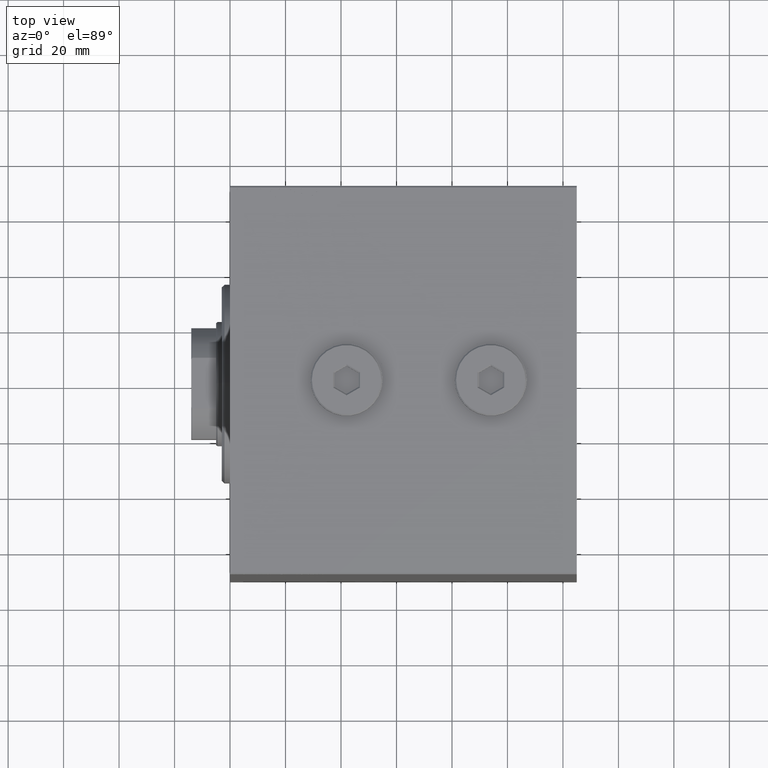
[diagram: clean part render]
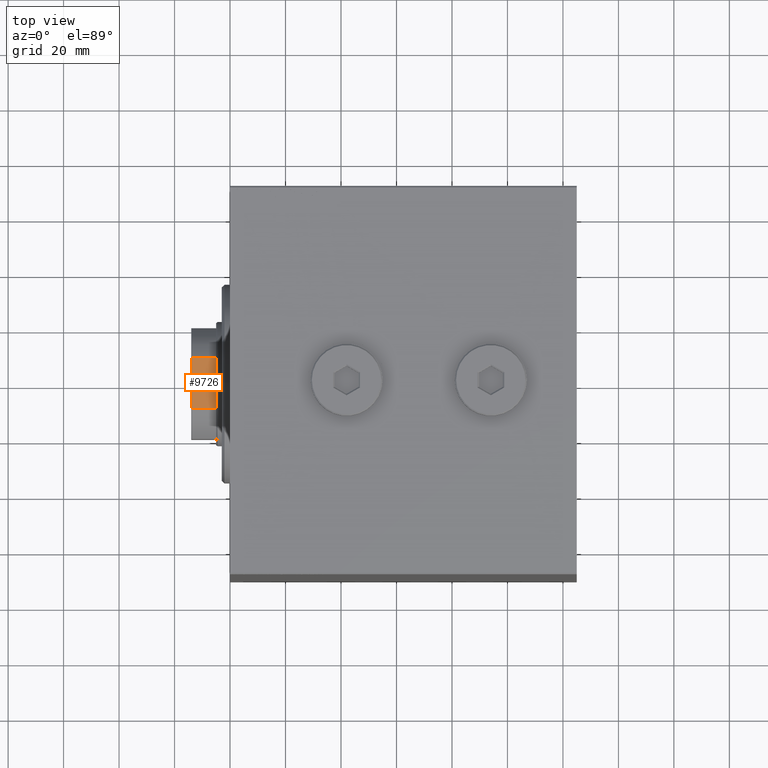
[diagram: same view with one face highlighted and labeled with its STEP entity id]
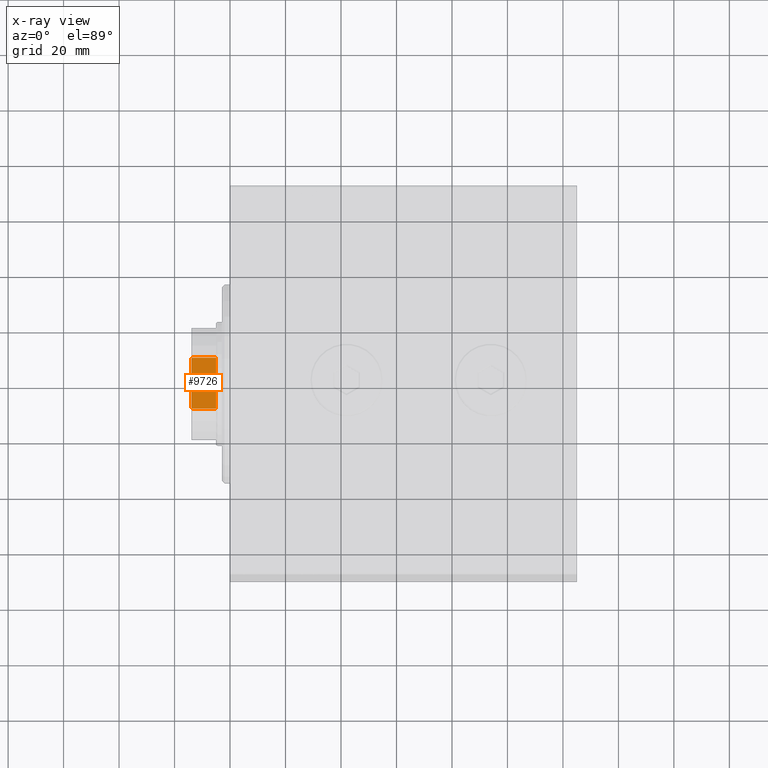
[diagram: x-ray of the same camera — body ghosted, the highlighted face saturated]
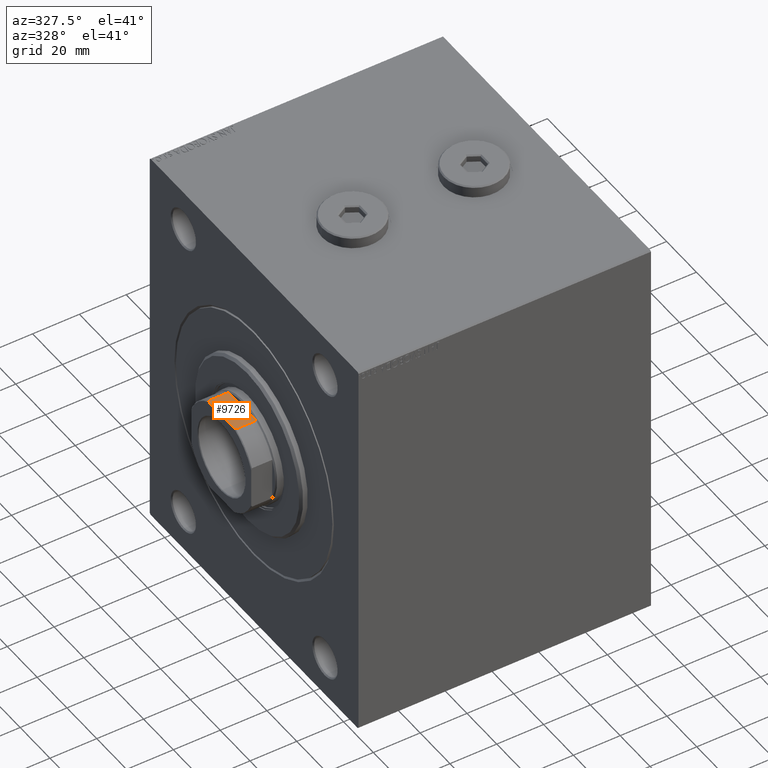
[diagram: same view with one face highlighted and labeled with its STEP entity id]
A machine part, top view. The second image highlights one B-rep face of the part: STEP entity #9726.
The next image is the same camera in x-ray: the body ghosted, the highlighted face saturated — about 0% of this face is hidden behind the body in this view.
A second angle (auxiliary view) of the same face is appended — the face is thin or edge-on in the first view.
In plain terms, the highlighted planar face has unit normal (-0, -0, -1).
Its self-contained STEP definition (entity closure, byte-faithful):
#349 = PLANE ( 'NONE',  #3297 ) ;
#1682 = CARTESIAN_POINT ( 'NONE',  ( 19.99999999999999289, 19.99999999999999289, 55.99999999999999289 ) ) ;
#1913 = DIRECTION ( 'NONE',  ( -2.602085213965210149E-16, 1.000000000000000000, -0.000000000000000000 ) ) ;
#1996 = VECTOR ( 'NONE', #28626, 1000.000000000000000 ) ;
#2133 = ORIENTED_EDGE ( 'NONE', *, *, #18015, .T. ) ;
#3297 = AXIS2_PLACEMENT_3D ( 'NONE', #24969, #18063, #39687 ) ;
#3384 = VERTEX_POINT ( 'NONE', #18315 ) ;
#3790 = CARTESIAN_POINT ( 'NONE',  ( 19.99999999999999645, -8.669375665356248817, 64.90309455053733245 ) ) ;
#4465 = CARTESIAN_POINT ( 'NONE',  ( 19.99999999999999289, -9.165151389911693869, -0.001000000000001000089 ) ) ;
#5798 = ORIENTED_EDGE ( 'NONE', *, *, #16513, .T. ) ;
#6627 = VERTEX_POINT ( 'NONE', #13685 ) ;
#7022 = CARTESIAN_POINT ( 'NONE',  ( 19.99999999999999645, 8.669375665356255922, 64.90309455053734666 ) ) ;
#9726 = ADVANCED_FACE ( 'NONE', ( #31867 ), #349, .F. ) ;
#11046 = ORIENTED_EDGE ( 'NONE', *, *, #15947, .F. ) ;
#11571 = EDGE_CURVE ( 'NONE', #3384, #40787, #23070, .T. ) ;
#11664 = EDGE_CURVE ( 'NONE', #36501, #25732, #24649, .T. ) ;
#12624 = ORIENTED_EDGE ( 'NONE', *, *, #11571, .T. ) ;
#13685 = CARTESIAN_POINT ( 'NONE',  ( 19.99999999999999289, -9.165151389911693869, 64.69999999999998863 ) ) ;
#13902 = CARTESIAN_POINT ( 'NONE',  ( 19.99999999999999289, -9.165151389911693869, 64.69999999999998863 ) ) ;
#14869 = B_SPLINE_CURVE_WITH_KNOTS ( 'NONE', 3,
 ( #38781, #38554, #7022, #21059 ),
 .UNSPECIFIED., .F., .F.,
 ( 4, 4 ),
 ( 0.000000000000000000, 0.0008036274864433864485 ),
 .UNSPECIFIED. ) ;
#15947 = EDGE_CURVE ( 'NONE', #3384, #6627, #43331, .T. ) ;
#16513 = EDGE_CURVE ( 'NONE', #36501, #6627, #30996, .T. ) ;
#18015 = EDGE_CURVE ( 'NONE', #40787, #32737, #38634, .T. ) ;
#18063 = DIRECTION ( 'NONE',  ( -1.000000000000000000, -2.602085213965210149E-16, 0.000000000000000000 ) ) ;
#18315 = CARTESIAN_POINT ( 'NONE',  ( 19.99999999999999289, -9.165151389911693869, 55.99999999999998579 ) ) ;
#19366 = CARTESIAN_POINT ( 'NONE',  ( 20.00000000000000000, -8.419619943916732296, 64.99999999999998579 ) ) ;
#20068 = DIRECTION ( 'NONE',  ( -2.602085213965210149E-16, 1.000000000000000000, -0.000000000000000000 ) ) ;
#21059 = CARTESIAN_POINT ( 'NONE',  ( 19.99999999999999289, 8.419619943916742955, 64.99999999999998579 ) ) ;
#22573 = ORIENTED_EDGE ( 'NONE', *, *, #11664, .F. ) ;
#23070 = LINE ( 'NONE', #1682, #34915 ) ;
#23344 = CARTESIAN_POINT ( 'NONE',  ( 19.99999999999999289, 8.419619943916742955, 64.99999999999998579 ) ) ;
#23930 = DIRECTION ( 'NONE',  ( -0.000000000000000000, -0.000000000000000000, 1.000000000000000000 ) ) ;
#24028 = CARTESIAN_POINT ( 'NONE',  ( 19.99999999999999289, 9.165151389911692092, 55.99999999999998579 ) ) ;
#24649 = LINE ( 'NONE', #41910, #33451 ) ;
#24725 = CARTESIAN_POINT ( 'NONE',  ( 20.00000000000000000, -8.419619943916732296, 64.99999999999998579 ) ) ;
#24969 = CARTESIAN_POINT ( 'NONE',  ( 19.99999999999999289, 19.99999999999999289, 64.99999999999998579 ) ) ;
#25732 = VERTEX_POINT ( 'NONE', #23344 ) ;
#26120 = ORIENTED_EDGE ( 'NONE', *, *, #28089, .T. ) ;
#28056 = CARTESIAN_POINT ( 'NONE',  ( 19.99999999999999289, 9.165151389911692092, -0.001000000000001000089 ) ) ;
#28089 = EDGE_CURVE ( 'NONE', #32737, #25732, #14869, .T. ) ;
#28383 = VECTOR ( 'NONE', #23930, 1000.000000000000000 ) ;
#28407 = CARTESIAN_POINT ( 'NONE',  ( 20.00000000000000000, -8.917857062074590502, 64.80302227056787956 ) ) ;
#28626 = DIRECTION ( 'NONE',  ( -0.000000000000000000, -0.000000000000000000, 1.000000000000000000 ) ) ;
#30996 = B_SPLINE_CURVE_WITH_KNOTS ( 'NONE', 3,
 ( #24725, #3790, #28407, #13902 ),
 .UNSPECIFIED., .F., .F.,
 ( 4, 4 ),
 ( 0.000000000000000000, 0.0008036274864433977242 ),
 .UNSPECIFIED. ) ;
#31867 = FACE_OUTER_BOUND ( 'NONE', #44452, .T. ) ;
#32737 = VERTEX_POINT ( 'NONE', #43374 ) ;
#33451 = VECTOR ( 'NONE', #20068, 1000.000000000000000 ) ;
#34915 = VECTOR ( 'NONE', #1913, 1000.000000000000000 ) ;
#36501 = VERTEX_POINT ( 'NONE', #19366 ) ;
#38554 = CARTESIAN_POINT ( 'NONE',  ( 19.99999999999999289, 8.917857062074594054, 64.80302227056787956 ) ) ;
#38634 = LINE ( 'NONE', #28056, #28383 ) ;
#38781 = CARTESIAN_POINT ( 'NONE',  ( 19.99999999999999289, 9.165151389911692092, 64.69999999999998863 ) ) ;
#39687 = DIRECTION ( 'NONE',  ( 2.602085213965210149E-16, -1.000000000000000000, 0.000000000000000000 ) ) ;
#40787 = VERTEX_POINT ( 'NONE', #24028 ) ;
#41910 = CARTESIAN_POINT ( 'NONE',  ( 19.99999999999999289, 19.99999999999999289, 64.99999999999998579 ) ) ;
#43331 = LINE ( 'NONE', #4465, #1996 ) ;
#43374 = CARTESIAN_POINT ( 'NONE',  ( 19.99999999999999289, 9.165151389911692092, 64.69999999999998863 ) ) ;
#44452 = EDGE_LOOP ( 'NONE', ( #2133, #26120, #22573, #5798, #11046, #12624 ) ) ;